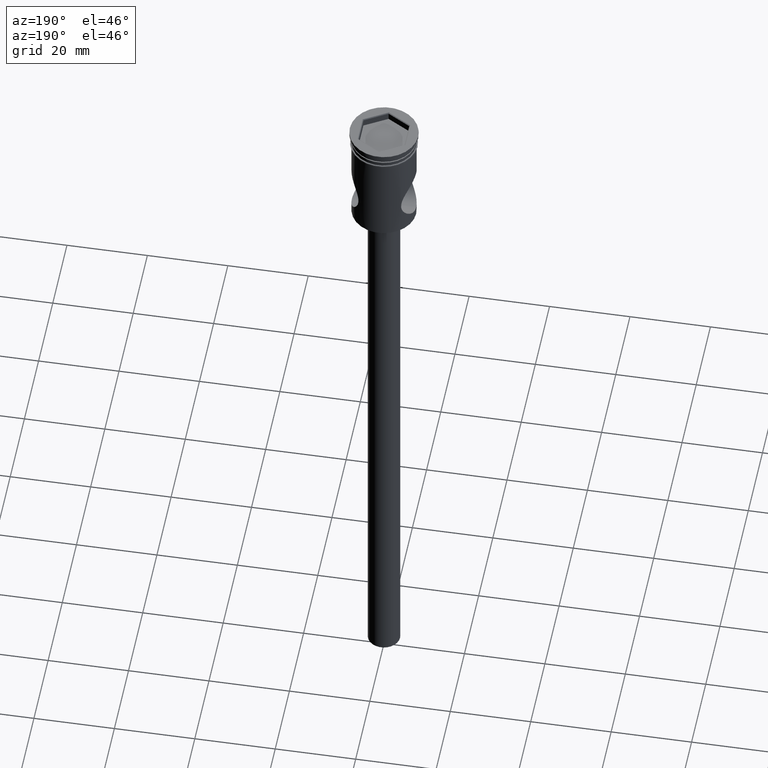
[diagram: clean part render]
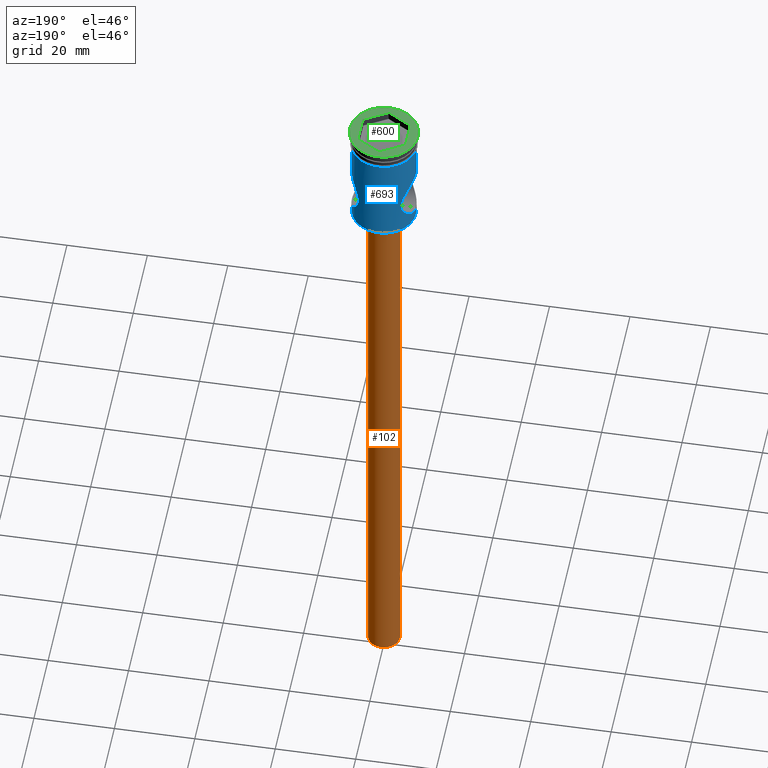
[diagram: same view with three faces highlighted in distinct colors, each labeled with its STEP entity id]
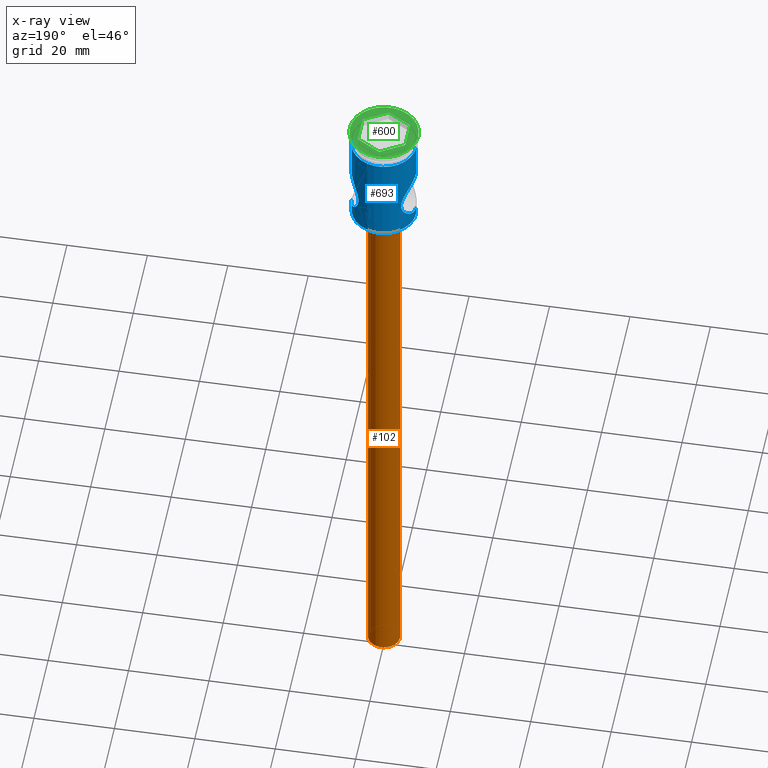
[diagram: x-ray of the same camera — body ghosted, the three highlighted faces saturated]
A machine part, auxiliary view with three faces highlighted in distinct colors.
The next image is the same camera in x-ray (body ghosted, the three faces saturated) — at least one of them is partly hidden behind the body in this view.
Their STEP definitions:

[orange] entity #102 — the highlighted cylindrical surface (edge-blend (fillet) strip) has radius 4 mm, axis along (-0, -0, 1).
#17 = VERTEX_POINT ( 'NONE', #1105 ) ;
#102 = ADVANCED_FACE ( 'NONE', ( #116 ), #488, .T. ) ;
#116 = FACE_OUTER_BOUND ( 'NONE', #952, .T. ) ;
#146 = CARTESIAN_POINT ( 'NONE',  ( -4.000000000000000000, 4.898587196589412829E-16, -177.5000000000000000 ) ) ;
#180 = CARTESIAN_POINT ( 'NONE',  ( 0.000000000000000000, 0.000000000000000000, -177.5000000000000000 ) ) ;
#247 = EDGE_CURVE ( 'NONE', #17, #655, #327, .T. ) ;
#255 = EDGE_CURVE ( 'NONE', #424, #761, #1068, .T. ) ;
#303 = ORIENTED_EDGE ( 'NONE', *, *, #880, .T. ) ;
#327 = CIRCLE ( 'NONE', #773, 4.000000000000000000 ) ;
#335 = CARTESIAN_POINT ( 'NONE',  ( 4.000000000000000000, 0.000000000000000000, -30.50000000000000000 ) ) ;
#407 = DIRECTION ( 'NONE',  ( -1.000000000000000000, 0.000000000000000000, 0.000000000000000000 ) ) ;
#424 = VERTEX_POINT ( 'NONE', #1183 ) ;
#459 = EDGE_CURVE ( 'NONE', #761, #655, #735, .T. ) ;
#488 = CYLINDRICAL_SURFACE ( 'NONE', #794, 4.000000000000000000 ) ;
#599 = DIRECTION ( 'NONE',  ( 1.000000000000000000, 0.000000000000000000, 0.000000000000000000 ) ) ;
#602 = AXIS2_PLACEMENT_3D ( 'NONE', #180, #1156, #1133 ) ;
#655 = VERTEX_POINT ( 'NONE', #335 ) ;
#722 = CARTESIAN_POINT ( 'NONE',  ( 0.000000000000000000, 0.000000000000000000, -177.5000000000000000 ) ) ;
#735 = LINE ( 'NONE', #1412, #1042 ) ;
#761 = VERTEX_POINT ( 'NONE', #929 ) ;
#769 = ORIENTED_EDGE ( 'NONE', *, *, #255, .F. ) ;
#770 = CARTESIAN_POINT ( 'NONE',  ( 0.000000000000000000, 0.000000000000000000, -30.50000000000000000 ) ) ;
#773 = AXIS2_PLACEMENT_3D ( 'NONE', #770, #1462, #407 ) ;
#794 = AXIS2_PLACEMENT_3D ( 'NONE', #722, #1086, #599 ) ;
#867 = VECTOR ( 'NONE', #1223, 1000.000000000000000 ) ;
#880 = EDGE_CURVE ( 'NONE', #424, #17, #1084, .T. ) ;
#929 = CARTESIAN_POINT ( 'NONE',  ( 4.000000000000000000, 0.000000000000000000, -177.5000000000000000 ) ) ;
#952 = EDGE_LOOP ( 'NONE', ( #769, #303, #1009, #1088 ) ) ;
#1009 = ORIENTED_EDGE ( 'NONE', *, *, #247, .T. ) ;
#1042 = VECTOR ( 'NONE', #1298, 1000.000000000000000 ) ;
#1068 = CIRCLE ( 'NONE', #602, 4.000000000000000000 ) ;
#1084 = LINE ( 'NONE', #146, #867 ) ;
#1086 = DIRECTION ( 'NONE',  ( -0.000000000000000000, -0.000000000000000000, 1.000000000000000000 ) ) ;
#1088 = ORIENTED_EDGE ( 'NONE', *, *, #459, .F. ) ;
#1105 = CARTESIAN_POINT ( 'NONE',  ( -4.000000000000000000, 4.898587196589412829E-16, -30.50000000000000000 ) ) ;
#1133 = DIRECTION ( 'NONE',  ( -1.000000000000000000, 0.000000000000000000, 0.000000000000000000 ) ) ;
#1156 = DIRECTION ( 'NONE',  ( 0.000000000000000000, 0.000000000000000000, -1.000000000000000000 ) ) ;
#1183 = CARTESIAN_POINT ( 'NONE',  ( -4.000000000000000000, 4.898587196589412829E-16, -177.5000000000000000 ) ) ;
#1223 = DIRECTION ( 'NONE',  ( -0.000000000000000000, -0.000000000000000000, 1.000000000000000000 ) ) ;
#1298 = DIRECTION ( 'NONE',  ( -0.000000000000000000, -0.000000000000000000, 1.000000000000000000 ) ) ;
#1412 = CARTESIAN_POINT ( 'NONE',  ( 4.000000000000000000, 0.000000000000000000, -177.5000000000000000 ) ) ;
#1462 = DIRECTION ( 'NONE',  ( 0.000000000000000000, 0.000000000000000000, -1.000000000000000000 ) ) ;

[blue] entity #693 — the highlighted cylindrical surface (edge-blend (fillet) strip) has radius 8 mm, axis along (-0, -0, 1).
#13 = FACE_OUTER_BOUND ( 'NONE', #555, .T. ) ;
#18 = DIRECTION ( 'NONE',  ( -0.000000000000000000, -0.000000000000000000, 1.000000000000000000 ) ) ;
#25 = CARTESIAN_POINT ( 'NONE',  ( 5.933514355146050967, 5.370016379611009860, -21.70410386792428170 ) ) ;
#35 = CARTESIAN_POINT ( 'NONE',  ( 5.341952933818355120, 5.956343020881682548, -19.82666753736794618 ) ) ;
#42 = CARTESIAN_POINT ( 'NONE',  ( 7.845111153738295151, 1.617379738080571894, -24.79213429196722984 ) ) ;
#51 = CARTESIAN_POINT ( 'NONE',  ( 7.999999999999996447, 0.000000000000000000, 0.000000000000000000 ) ) ;
#53 = CARTESIAN_POINT ( 'NONE',  ( -5.528728542356219577, 5.782767647903219732, -17.38791116192859931 ) ) ;
#62 = CARTESIAN_POINT ( 'NONE',  ( -7.746242821178788596, 2.008647717025523693, -24.65738428818450245 ) ) ;
#65 = CARTESIAN_POINT ( 'NONE',  ( 5.934194063793421847, 5.369288296893337531, -16.29430799600839208 ) ) ;
#67 = CARTESIAN_POINT ( 'NONE',  ( -7.169789722930493880, 3.553058473854127985, -23.83860449815402305 ) ) ;
#80 = CARTESIAN_POINT ( 'NONE',  ( 6.428305707969257377, 4.769535948342530141, -15.34044057477574263 ) ) ;
#82 = VERTEX_POINT ( 'NONE', #92 ) ;
#92 = CARTESIAN_POINT ( 'NONE',  ( 7.999999999999996447, 0.000000000000000000, -27.30000000000000426 ) ) ;
#96 = CARTESIAN_POINT ( 'NONE',  ( 7.999999999999996447, 0.000000000000000000, 0.000000000000000000 ) ) ;
#104 = DIRECTION ( 'NONE',  ( -0.000000000000000000, -0.000000000000000000, 1.000000000000000000 ) ) ;
#133 = ORIENTED_EDGE ( 'NONE', *, *, #593, .F. ) ;
#141 = CARTESIAN_POINT ( 'NONE',  ( 7.390068150002869096, 3.069273339745732798, -24.15922233971244637 ) ) ;
#144 = DIRECTION ( 'NONE',  ( -0.000000000000000000, -0.000000000000000000, 1.000000000000000000 ) ) ;
#158 = CARTESIAN_POINT ( 'NONE',  ( -6.428408221799558397, 4.769379950103072474, -22.65971221525529344 ) ) ;
#161 = CARTESIAN_POINT ( 'NONE',  ( 5.385705311345802215, 5.915896059439944565, -17.97877459268462985 ) ) ;
#164 = EDGE_CURVE ( 'NONE', #82, #1402, #376, .T. ) ;
#165 = CARTESIAN_POINT ( 'NONE',  ( -5.519437917285256567, 5.792285672141820108, -20.61683396324643169 ) ) ;
#170 = CARTESIAN_POINT ( 'NONE',  ( -5.291471813663452650, 6.000027170513403618, -18.79430872448704548 ) ) ;
#178 = CARTESIAN_POINT ( 'NONE',  ( 8.000000000000005329, 0.4110175701281992278, -13.00000000000000000 ) ) ;
#193 = CARTESIAN_POINT ( 'NONE',  ( 5.474412988877314312, 5.833905236971784980, -17.58356884929881048 ) ) ;
#232 = CARTESIAN_POINT ( 'NONE',  ( -7.875112291323477898, 1.422312626392037371, -13.16749109191733957 ) ) ;
#240 = DIRECTION ( 'NONE',  ( -0.000000000000000000, -0.000000000000000000, 1.000000000000000000 ) ) ;
#253 = VECTOR ( 'NONE', #1150, 1000.000000000000000 ) ;
#267 = ORIENTED_EDGE ( 'NONE', *, *, #1494, .F. ) ;
#268 = CARTESIAN_POINT ( 'NONE',  ( 7.522790365168889437, 2.727851025529601348, -24.34760159016909142 ) ) ;
#272 = CARTESIAN_POINT ( 'NONE',  ( -7.748015674478848425, 2.001785621332211385, -13.34018995724741607 ) ) ;
#285 = CARTESIAN_POINT ( 'NONE',  ( 7.753317466694376492, 2.007594612796118838, -24.66794618566808239 ) ) ;
#288 = EDGE_CURVE ( 'NONE', #82, #779, #1255, .T. ) ;
#289 = CARTESIAN_POINT ( 'NONE',  ( -5.717670742267800144, 5.596336919971244939, -16.82796284348983917 ) ) ;
#315 = CARTESIAN_POINT ( 'NONE',  ( 7.875627092851996913, 1.419784017982118174, -13.16679506876979033 ) ) ;
#338 = CARTESIAN_POINT ( 'NONE',  ( -7.999999999999996447, 9.797174393178821713E-16, -27.30000000000000426 ) ) ;
#342 = CARTESIAN_POINT ( 'NONE',  ( -7.991997215772791208, 0.4127757007396791189, -13.01065792661720621 ) ) ;
#343 = LINE ( 'NONE', #351, #1070 ) ;
#351 = CARTESIAN_POINT ( 'NONE',  ( -7.999999999999996447, 9.797174393178821713E-16, 0.000000000000000000 ) ) ;
#376 = CIRCLE ( 'NONE', #1430, 7.999999999999996447 ) ;
#378 = DIRECTION ( 'NONE',  ( -1.000000000000000000, 0.000000000000000000, 0.000000000000000000 ) ) ;
#391 = CARTESIAN_POINT ( 'NONE',  ( -7.935826362832939296, 1.031097151778473719, -24.91423007022369518 ) ) ;
#396 = CARTESIAN_POINT ( 'NONE',  ( 5.527830583457348013, 5.783619756404971390, -20.60895157510370268 ) ) ;
#408 = CARTESIAN_POINT ( 'NONE',  ( -7.999999999999996447, 0.000000000000000000, -25.00000000000000000 ) ) ;
#418 = CARTESIAN_POINT ( 'NONE',  ( 7.837185563733797267, 1.617777997116385258, -13.21872241145037563 ) ) ;
#420 = CARTESIAN_POINT ( 'NONE',  ( -5.386132118162890059, 5.915506229595402843, -17.97664524532638453 ) ) ;
#426 = AXIS2_PLACEMENT_3D ( 'NONE', #601, #240, #483 ) ;
#428 = CARTESIAN_POINT ( 'NONE',  ( 5.717260744181801968, 5.596776624407745260, -16.82891779856496584 ) ) ;
#446 = LINE ( 'NONE', #1429, #1344 ) ;
#475 = B_SPLINE_CURVE_WITH_KNOTS ( 'NONE', 3,
 ( #876, #1342, #1356, #42, #285, #768, #268, #141, #965, #758, #619, #525, #1336, #749, #25, #1436, #1450, #396, #1091, #35, #1224, #509, #973, #1217, #161, #193, #899, #1478, #428, #65, #1383, #80, #893, #541, #667, #907, #1493, #547, #1372, #418, #315, #785, #178, #1037 ),
 .UNSPECIFIED., .F., .F.,
 ( 4, 2, 2, 2, 2, 2, 2, 2, 2, 2, 2, 2, 2, 2, 2, 2, 2, 2, 2, 2, 2, 4 ),
 ( 0.000000000000000000, 0.001228223836357238098, 0.002456447672714476196, 0.003070559590893096654, 0.003684671509071716679, 0.004912895345428957596, 0.006141119181786197645, 0.007369343018143437694, 0.007983454936322062490, 0.008597566854500688152, 0.009825790690857941212, 0.01043990260903657034, 0.01105401452721520121, 0.01166812644539383034, 0.01228223836357246121, 0.01351046219992971080, 0.01473868603628695692, 0.01596690987264420825, 0.01719513370900145610, 0.01780924562718008350, 0.01842335754535870743, 0.01965158138171595528 ),
 .UNSPECIFIED. ) ;
#483 = DIRECTION ( 'NONE',  ( 1.000000000000000000, 0.000000000000000000, 0.000000000000000000 ) ) ;
#494 = CARTESIAN_POINT ( 'NONE',  ( 8.000000000000000000, 0.000000000000000000, -3.999999999999997335 ) ) ;
#495 = ORIENTED_EDGE ( 'NONE', *, *, #1503, .F. ) ;
#498 = VERTEX_POINT ( 'NONE', #842 ) ;
#505 = VECTOR ( 'NONE', #1461, 1000.000000000000000 ) ;
#509 = CARTESIAN_POINT ( 'NONE',  ( 5.291499639625487639, 6.000002630321015218, -18.79521987294451435 ) ) ;
#514 = CARTESIAN_POINT ( 'NONE',  ( -6.096832542624039064, 5.181052271612227145, -22.03201423696314265 ) ) ;
#525 = CARTESIAN_POINT ( 'NONE',  ( 6.600129246405443517, 4.531693863514761667, -22.95038707538193634 ) ) ;
#529 = CARTESIAN_POINT ( 'NONE',  ( -6.598787025335902889, 4.533655066149032464, -22.94815787054485412 ) ) ;
#538 = CARTESIAN_POINT ( 'NONE',  ( -7.092607887154919410, 3.704399776580871606, -23.72372303530257298 ) ) ;
#541 = CARTESIAN_POINT ( 'NONE',  ( 6.935409427810199645, 3.999736926290286210, -14.51184028921589508 ) ) ;
#543 = CARTESIAN_POINT ( 'NONE',  ( -6.178944471944528338, 5.083158423289838801, -22.19321469611284314 ) ) ;
#547 = CARTESIAN_POINT ( 'NONE',  ( 7.697512327894634687, 2.187332674909133967, -13.40941737064048489 ) ) ;
#555 = EDGE_LOOP ( 'NONE', ( #1177, #1469, #982, #836, #495, #267, #133, #706 ) ) ;
#588 = CARTESIAN_POINT ( 'NONE',  ( -7.999999999999996447, 9.797174356432676922E-16, -13.00000000000000533 ) ) ;
#593 = EDGE_CURVE ( 'NONE', #779, #498, #475, .T. ) ;
#601 = CARTESIAN_POINT ( 'NONE',  ( 0.000000000000000000, 0.000000000000000000, 0.000000000000000000 ) ) ;
#616 = CARTESIAN_POINT ( 'NONE',  ( -6.092548161367386861, 5.191587824295140763, -15.96869401757640716 ) ) ;
#619 = CARTESIAN_POINT ( 'NONE',  ( 6.933994888437764459, 4.002208169122734027, -23.48599343389724581 ) ) ;
#628 = CARTESIAN_POINT ( 'NONE',  ( -6.932510933914958429, 3.995992554649490547, -23.47975228357175581 ) ) ;
#630 = AXIS2_PLACEMENT_3D ( 'NONE', #1296, #104, #1397 ) ;
#638 = CARTESIAN_POINT ( 'NONE',  ( -7.524109323248031167, 2.744670825570129757, -24.35015039146814786 ) ) ;
#645 = CARTESIAN_POINT ( 'NONE',  ( -5.643916026891298898, 5.673596022587067189, -20.98979656833889251 ) ) ;
#667 = CARTESIAN_POINT ( 'NONE',  ( 7.095827365271405895, 3.710952672189014923, -14.26968452820924682 ) ) ;
#693 = ADVANCED_FACE ( 'NONE', ( #13 ), #1295, .T. ) ;
#706 = ORIENTED_EDGE ( 'NONE', *, *, #288, .F. ) ;
#710 = CARTESIAN_POINT ( 'NONE',  ( -7.526744538711455768, 2.737435864263675800, -13.64615235571891283 ) ) ;
#744 = CARTESIAN_POINT ( 'NONE',  ( -7.696444758544893183, 2.191140728972409857, -13.41088448561661650 ) ) ;
#749 = CARTESIAN_POINT ( 'NONE',  ( 6.094205644570493519, 5.189600670481776312, -22.03454661334871290 ) ) ;
#753 = CARTESIAN_POINT ( 'NONE',  ( -5.340955530264040796, 5.957261304845339112, -19.82204812401646876 ) ) ;
#758 = CARTESIAN_POINT ( 'NONE',  ( 7.095043372362062506, 3.712647680833710329, -23.72917063698660911 ) ) ;
#760 = CARTESIAN_POINT ( 'NONE',  ( -5.650483228049789197, 5.663857365279294953, -17.01003722717182498 ) ) ;
#765 = CARTESIAN_POINT ( 'NONE',  ( -5.932300773519818549, 5.371293148560216224, -16.29886334358921118 ) ) ;
#768 = CARTESIAN_POINT ( 'NONE',  ( 7.584438918382732986, 2.551936178765121799, -24.43384157505064636 ) ) ;
#779 = VERTEX_POINT ( 'NONE', #1401 ) ;
#781 = CARTESIAN_POINT ( 'NONE',  ( -5.303887827319022641, 5.989138807782576457, -18.58493257538529875 ) ) ;
#784 = EDGE_CURVE ( 'NONE', #824, #1149, #343, .T. ) ;
#785 = CARTESIAN_POINT ( 'NONE',  ( 7.968510204580123713, 0.8173127755210328749, -13.04179007278580293 ) ) ;
#818 = CARTESIAN_POINT ( 'NONE',  ( -8.000000000000005329, 0.2050786897151790633, -13.00000000000000355 ) ) ;
#824 = VERTEX_POINT ( 'NONE', #939 ) ;
#836 = ORIENTED_EDGE ( 'NONE', *, *, #784, .T. ) ;
#842 = CARTESIAN_POINT ( 'NONE',  ( 7.999999999999996447, 3.674711311745778243E-24, -13.00000000000000533 ) ) ;
#876 = CARTESIAN_POINT ( 'NONE',  ( 7.999999999999996447, 0.000000000000000000, -25.00000000000000000 ) ) ;
#885 = CARTESIAN_POINT ( 'NONE',  ( -6.849379830468325991, 4.136484081211206920, -23.35028667483849318 ) ) ;
#890 = CIRCLE ( 'NONE', #630, 8.000000000000000000 ) ;
#893 = CARTESIAN_POINT ( 'NONE',  ( 6.602014270987715427, 4.528930003495660550, -15.04648686704185856 ) ) ;
#899 = CARTESIAN_POINT ( 'NONE',  ( 5.527877811876816594, 5.783575200193208588, -17.39087967744914920 ) ) ;
#907 = CARTESIAN_POINT ( 'NONE',  ( 7.392183792285975663, 3.078563709593460818, -13.83574790663121590 ) ) ;
#939 = CARTESIAN_POINT ( 'NONE',  ( -7.999999999999996447, 9.797174356432676922E-16, -13.00000000000000533 ) ) ;
#943 = DIRECTION ( 'NONE',  ( -0.000000000000000000, -0.000000000000000000, 1.000000000000000000 ) ) ;
#965 = CARTESIAN_POINT ( 'NONE',  ( 7.318622431870950074, 3.235523761949524069, -24.05653912422262408 ) ) ;
#973 = CARTESIAN_POINT ( 'NONE',  ( 5.303431297491207452, 5.989541423528398134, -18.59082079987659952 ) ) ;
#975 = CARTESIAN_POINT ( 'NONE',  ( -7.694334963991131815, 2.198537974230715175, -24.58621182590502485 ) ) ;
#982 = ORIENTED_EDGE ( 'NONE', *, *, #1214, .F. ) ;
#983 = CARTESIAN_POINT ( 'NONE',  ( -5.937193840094636244, 5.363245192895813140, -21.69666719771004892 ) ) ;
#992 = CARTESIAN_POINT ( 'NONE',  ( -7.390764062597866335, 3.081727328898060225, -24.16219223809560290 ) ) ;
#1037 = CARTESIAN_POINT ( 'NONE',  ( 7.999999999999996447, 3.674711311745778243E-24, -13.00000000000000533 ) ) ;
#1044 = CARTESIAN_POINT ( 'NONE',  ( -6.932348065000020654, 4.004981294134720926, -14.51657531287133551 ) ) ;
#1053 = CARTESIAN_POINT ( 'NONE',  ( -7.837238599853709964, 1.617585761159322510, -13.21864966473142644 ) ) ;
#1070 = VECTOR ( 'NONE', #18, 1000.000000000000000 ) ;
#1082 = CARTESIAN_POINT ( 'NONE',  ( -8.000000000000000000, 9.797174393178825657E-16, -3.999999999999997335 ) ) ;
#1091 = CARTESIAN_POINT ( 'NONE',  ( 5.474514516413027998, 5.833807645266261943, -20.41669993575522923 ) ) ;
#1104 = CARTESIAN_POINT ( 'NONE',  ( -8.000000000000000000, 0.2076584939606447855, -25.00000000000001066 ) ) ;
#1110 = CARTESIAN_POINT ( 'NONE',  ( -5.291564416442851915, 5.999945502536777830, -19.41375567364516641 ) ) ;
#1119 = CARTESIAN_POINT ( 'NONE',  ( -7.959626168830804538, 0.8288481689406965724, -24.94607871179749026 ) ) ;
#1149 = VERTEX_POINT ( 'NONE', #1082 ) ;
#1150 = DIRECTION ( 'NONE',  ( -0.000000000000000000, -0.000000000000000000, 1.000000000000000000 ) ) ;
#1171 = EDGE_CURVE ( 'NONE', #1402, #1495, #446, .T. ) ;
#1177 = ORIENTED_EDGE ( 'NONE', *, *, #164, .T. ) ;
#1214 = EDGE_CURVE ( 'NONE', #824, #1495, #1376, .T. ) ;
#1217 = CARTESIAN_POINT ( 'NONE',  ( 5.350380422783078238, 5.947639811124362907, -18.18292303966837764 ) ) ;
#1224 = CARTESIAN_POINT ( 'NONE',  ( 5.291508588819593406, 5.999994737873667106, -19.40979141361455262 ) ) ;
#1226 = CARTESIAN_POINT ( 'NONE',  ( -5.351298131410346492, 5.946815791029208320, -18.17692857331259404 ) ) ;
#1233 = CARTESIAN_POINT ( 'NONE',  ( -7.873944427309549354, 1.428810887794780049, -24.83093286763472918 ) ) ;
#1255 = LINE ( 'NONE', #96, #253 ) ;
#1289 = CARTESIAN_POINT ( 'NONE',  ( 0.000000000000000000, 0.000000000000000000, -27.30000000000000426 ) ) ;
#1293 = CARTESIAN_POINT ( 'NONE',  ( -7.960178332295269499, 0.8233858112076458680, -13.05318252701360215 ) ) ;
#1295 = CYLINDRICAL_SURFACE ( 'NONE', #426, 7.999999999999996447 ) ;
#1296 = CARTESIAN_POINT ( 'NONE',  ( 0.000000000000000000, 0.000000000000000000, -3.999999999999997335 ) ) ;
#1310 = CARTESIAN_POINT ( 'NONE',  ( -7.999999999999996447, 0.000000000000000000, -25.00000000000000000 ) ) ;
#1331 = CARTESIAN_POINT ( 'NONE',  ( -7.936580320267932365, 1.025211991777383647, -13.08475919831038858 ) ) ;
#1336 = CARTESIAN_POINT ( 'NONE',  ( 6.426683704192725166, 4.771690908225659555, -22.65669169386860204 ) ) ;
#1342 = CARTESIAN_POINT ( 'NONE',  ( 7.999999999999998224, 0.4161879994587696641, -25.00000000000000711 ) ) ;
#1344 = VECTOR ( 'NONE', #144, 1000.000000000000000 ) ;
#1356 = CARTESIAN_POINT ( 'NONE',  ( 7.967750386662298290, 0.8225813075346128933, -24.95718867133071939 ) ) ;
#1367 = CARTESIAN_POINT ( 'NONE',  ( -5.859839614964069909, 5.447306643968808260, -21.52271597277527704 ) ) ;
#1372 = CARTESIAN_POINT ( 'NONE',  ( 7.748219018226238042, 2.000946089715710308, -13.33991246093565231 ) ) ;
#1376 = B_SPLINE_CURVE_WITH_KNOTS ( 'NONE', 3,
 ( #588, #818, #342, #1293, #1331, #232, #1053, #272, #744, #710, #1390, #1499, #1044, #1511, #1395, #616, #765, #289, #760, #53, #1446, #420, #1226, #781, #170, #1110, #753, #165, #645, #1367, #983, #514, #543, #158, #529, #885, #628, #538, #67, #992, #638, #975, #62, #1463, #1233, #391, #1119, #1468, #1104, #408 ),
 .UNSPECIFIED., .F., .F.,
 ( 4, 2, 2, 2, 2, 2, 2, 2, 2, 2, 2, 2, 2, 2, 2, 2, 2, 2, 2, 2, 2, 2, 2, 2, 4 ),
 ( 0.01965158138171595875, 0.02026440806685870719, 0.02087723475200145562, 0.02149006143714420405, 0.02210288812228695249, 0.02332854149257245283, 0.02455419486285795316, 0.02577984823314345697, 0.02700550160342895384, 0.02761832828857171268, 0.02823115497371446458, 0.02884398165885721996, 0.02945680834399997533, 0.03068246171428548608, 0.03190811508457099682, 0.03252094176971375566, 0.03313376845485650757, 0.03435942182514201831, 0.03497224851028477716, 0.03558507519542753600, 0.03681072856571306062, 0.03742355525085581947, 0.03803638193599857831, 0.03864920862114134409, 0.03926203530628410293 ),
 .UNSPECIFIED. ) ;
#1383 = CARTESIAN_POINT ( 'NONE',  ( 6.095265202635740565, 5.188384097884398471, -15.96330462474424650 ) ) ;
#1390 = CARTESIAN_POINT ( 'NONE',  ( -7.392840448243055640, 3.077268624920922235, -13.83477139314359405 ) ) ;
#1395 = CARTESIAN_POINT ( 'NONE',  ( -6.426120009460147386, 4.772495035090829951, -15.34422494722665498 ) ) ;
#1397 = DIRECTION ( 'NONE',  ( 1.000000000000000000, 0.000000000000000000, 0.000000000000000000 ) ) ;
#1401 = CARTESIAN_POINT ( 'NONE',  ( 7.999999999999996447, 0.000000000000000000, -25.00000000000000000 ) ) ;
#1402 = VERTEX_POINT ( 'NONE', #338 ) ;
#1425 = VERTEX_POINT ( 'NONE', #494 ) ;
#1429 = CARTESIAN_POINT ( 'NONE',  ( -7.999999999999996447, 9.797174393178821713E-16, 0.000000000000000000 ) ) ;
#1430 = AXIS2_PLACEMENT_3D ( 'NONE', #1289, #943, #378 ) ;
#1436 = CARTESIAN_POINT ( 'NONE',  ( 5.717181671610946481, 5.596851870810901630, -21.17084374095739463 ) ) ;
#1446 = CARTESIAN_POINT ( 'NONE',  ( -5.474655730134190712, 5.833676180865436933, -17.58271699258815346 ) ) ;
#1450 = CARTESIAN_POINT ( 'NONE',  ( 5.648998666191807239, 5.665331633315698667, -20.98569890523691583 ) ) ;
#1451 = LINE ( 'NONE', #51, #505 ) ;
#1461 = DIRECTION ( 'NONE',  ( -0.000000000000000000, -0.000000000000000000, 1.000000000000000000 ) ) ;
#1463 = CARTESIAN_POINT ( 'NONE',  ( -7.835858405065169840, 1.624274161447295306, -24.77948060674688691 ) ) ;
#1468 = CARTESIAN_POINT ( 'NONE',  ( -7.991786201921672550, 0.4171226887462312072, -24.98906086098487123 ) ) ;
#1469 = ORIENTED_EDGE ( 'NONE', *, *, #1171, .T. ) ;
#1478 = CARTESIAN_POINT ( 'NONE',  ( 5.649101405964834122, 5.665229783906036154, -17.01400357395085550 ) ) ;
#1493 = CARTESIAN_POINT ( 'NONE',  ( 7.528683465599922187, 2.731923562265712313, -13.64343887222187135 ) ) ;
#1494 = EDGE_CURVE ( 'NONE', #498, #1425, #1451, .T. ) ;
#1495 = VERTEX_POINT ( 'NONE', #1310 ) ;
#1499 = CARTESIAN_POINT ( 'NONE',  ( -7.094299755750172132, 3.714105956844027556, -14.27193636968089585 ) ) ;
#1503 = EDGE_CURVE ( 'NONE', #1425, #1149, #890, .T. ) ;
#1511 = CARTESIAN_POINT ( 'NONE',  ( -6.599412474671010109, 4.532668071879429661, -15.05083651367930742 ) ) ;

[green] entity #600 — the highlighted planar face has unit normal (0, -0, 1).
#1 = DIRECTION ( 'NONE',  ( -3.953459470360945130E-16, -1.000000000000000000, 0.000000000000000000 ) ) ;
#3 = CARTESIAN_POINT ( 'NONE',  ( -5.799999999999998934, -3.464101615137751722, 0.000000000000000000 ) ) ;
#8 = AXIS2_PLACEMENT_3D ( 'NONE', #1426, #126, #823 ) ;
#26 = CARTESIAN_POINT ( 'NONE',  ( 5.899999999999996803, -3.406366588218789460, 0.000000000000000000 ) ) ;
#32 = VECTOR ( 'NONE', #923, 1000.000000000000114 ) ;
#40 = EDGE_CURVE ( 'NONE', #1060, #1072, #325, .T. ) ;
#43 = LINE ( 'NONE', #1208, #775 ) ;
#81 = VECTOR ( 'NONE', #473, 1000.000000000000114 ) ;
#117 = VERTEX_POINT ( 'NONE', #1185 ) ;
#126 = DIRECTION ( 'NONE',  ( -0.000000000000000000, -0.000000000000000000, 1.000000000000000000 ) ) ;
#150 = AXIS2_PLACEMENT_3D ( 'NONE', #300, #771, #1453 ) ;
#172 = VERTEX_POINT ( 'NONE', #1414 ) ;
#179 = VERTEX_POINT ( 'NONE', #1059 ) ;
#200 = VECTOR ( 'NONE', #1287, 1000.000000000000114 ) ;
#206 = EDGE_LOOP ( 'NONE', ( #365, #532, #1339, #1498, #936, #660 ) ) ;
#215 = LINE ( 'NONE', #3, #81 ) ;
#234 = CARTESIAN_POINT ( 'NONE',  ( -5.954239560892097332E-16, 6.812733176437579807, 0.000000000000000000 ) ) ;
#300 = CARTESIAN_POINT ( 'NONE',  ( 0.000000000000000000, 0.000000000000000000, 0.000000000000000000 ) ) ;
#325 = LINE ( 'NONE', #340, #1167 ) ;
#340 = CARTESIAN_POINT ( 'NONE',  ( -5.899999999999996803, 3.290896534380865823, 0.000000000000000000 ) ) ;
#365 = ORIENTED_EDGE ( 'NONE', *, *, #801, .T. ) ;
#374 = CARTESIAN_POINT ( 'NONE',  ( -0.09999999999999933942, 6.754998149518617545, 0.000000000000000000 ) ) ;
#402 = CIRCLE ( 'NONE', #150, 8.500000000000000000 ) ;
#440 = EDGE_CURVE ( 'NONE', #179, #117, #1431, .T. ) ;
#449 = FACE_OUTER_BOUND ( 'NONE', #712, .T. ) ;
#456 = CARTESIAN_POINT ( 'NONE',  ( 5.799999999999998934, 3.464101615137752610, 0.000000000000000000 ) ) ;
#457 = VERTEX_POINT ( 'NONE', #813 ) ;
#468 = EDGE_CURVE ( 'NONE', #1072, #694, #941, .T. ) ;
#473 = DIRECTION ( 'NONE',  ( -0.8660254037844385966, 0.5000000000000001110, 0.000000000000000000 ) ) ;
#532 = ORIENTED_EDGE ( 'NONE', *, *, #40, .T. ) ;
#586 = DIRECTION ( 'NONE',  ( 1.317819823453649034E-16, 1.000000000000000000, 0.000000000000000000 ) ) ;
#600 = ADVANCED_FACE ( 'NONE', ( #1252, #449 ), #1471, .T. ) ;
#659 = CARTESIAN_POINT ( 'NONE',  ( 0.000000000000000000, 0.000000000000000000, 0.000000000000000000 ) ) ;
#660 = ORIENTED_EDGE ( 'NONE', *, *, #1492, .T. ) ;
#674 = ORIENTED_EDGE ( 'NONE', *, *, #440, .T. ) ;
#689 = DIRECTION ( 'NONE',  ( 0.000000000000000000, -0.000000000000000000, 1.000000000000000000 ) ) ;
#694 = VERTEX_POINT ( 'NONE', #234 ) ;
#703 = AXIS2_PLACEMENT_3D ( 'NONE', #659, #689, #1501 ) ;
#712 = EDGE_LOOP ( 'NONE', ( #894, #674 ) ) ;
#771 = DIRECTION ( 'NONE',  ( -0.000000000000000000, -0.000000000000000000, 1.000000000000000000 ) ) ;
#775 = VECTOR ( 'NONE', #981, 1000.000000000000000 ) ;
#801 = EDGE_CURVE ( 'NONE', #457, #1060, #215, .T. ) ;
#803 = EDGE_CURVE ( 'NONE', #694, #172, #1512, .T. ) ;
#813 = CARTESIAN_POINT ( 'NONE',  ( -2.007024465603783099E-15, -6.812733176437579807, 0.000000000000000000 ) ) ;
#823 = DIRECTION ( 'NONE',  ( 1.000000000000000000, 0.000000000000000000, 0.000000000000000000 ) ) ;
#894 = ORIENTED_EDGE ( 'NONE', *, *, #1265, .T. ) ;
#923 = DIRECTION ( 'NONE',  ( 0.8660254037844388186, -0.4999999999999997780, 0.000000000000000000 ) ) ;
#936 = ORIENTED_EDGE ( 'NONE', *, *, #1474, .T. ) ;
#941 = LINE ( 'NONE', #374, #200 ) ;
#981 = DIRECTION ( 'NONE',  ( -0.8660254037844387076, -0.4999999999999998890, 0.000000000000000000 ) ) ;
#1057 = CARTESIAN_POINT ( 'NONE',  ( 5.899999999999996803, -3.290896534380868488, 0.000000000000000000 ) ) ;
#1059 = CARTESIAN_POINT ( 'NONE',  ( -8.500000000000000000, 1.040949779275250140E-15, 0.000000000000000000 ) ) ;
#1060 = VERTEX_POINT ( 'NONE', #1334 ) ;
#1072 = VERTEX_POINT ( 'NONE', #1129 ) ;
#1129 = CARTESIAN_POINT ( 'NONE',  ( -5.899999999999996803, 3.406366588218790348, 0.000000000000000000 ) ) ;
#1167 = VECTOR ( 'NONE', #586, 1000.000000000000000 ) ;
#1185 = CARTESIAN_POINT ( 'NONE',  ( 8.500000000000000000, 0.000000000000000000, 0.000000000000000000 ) ) ;
#1208 = CARTESIAN_POINT ( 'NONE',  ( 0.09999999999999691080, -6.754998149518617545, 0.000000000000000000 ) ) ;
#1252 = FACE_BOUND ( 'NONE', #206, .T. ) ;
#1265 = EDGE_CURVE ( 'NONE', #117, #179, #402, .T. ) ;
#1287 = DIRECTION ( 'NONE',  ( 0.8660254037844385966, 0.4999999999999999445, 0.000000000000000000 ) ) ;
#1334 = CARTESIAN_POINT ( 'NONE',  ( -5.899999999999997691, -3.406366588218790348, 0.000000000000000000 ) ) ;
#1339 = ORIENTED_EDGE ( 'NONE', *, *, #468, .T. ) ;
#1414 = CARTESIAN_POINT ( 'NONE',  ( 5.899999999999998579, 3.406366588218789904, 0.000000000000000000 ) ) ;
#1421 = VERTEX_POINT ( 'NONE', #26 ) ;
#1426 = CARTESIAN_POINT ( 'NONE',  ( 0.000000000000000000, 0.000000000000000000, 0.000000000000000000 ) ) ;
#1431 = CIRCLE ( 'NONE', #8, 8.500000000000000000 ) ;
#1433 = VECTOR ( 'NONE', #1, 1000.000000000000000 ) ;
#1437 = LINE ( 'NONE', #1057, #1433 ) ;
#1453 = DIRECTION ( 'NONE',  ( 1.000000000000000000, 0.000000000000000000, 0.000000000000000000 ) ) ;
#1471 = PLANE ( 'NONE',  #703 ) ;
#1474 = EDGE_CURVE ( 'NONE', #172, #1421, #1437, .T. ) ;
#1492 = EDGE_CURVE ( 'NONE', #1421, #457, #43, .T. ) ;
#1498 = ORIENTED_EDGE ( 'NONE', *, *, #803, .T. ) ;
#1501 = DIRECTION ( 'NONE',  ( 1.000000000000000000, 0.000000000000000000, 0.000000000000000000 ) ) ;
#1512 = LINE ( 'NONE', #456, #32 ) ;